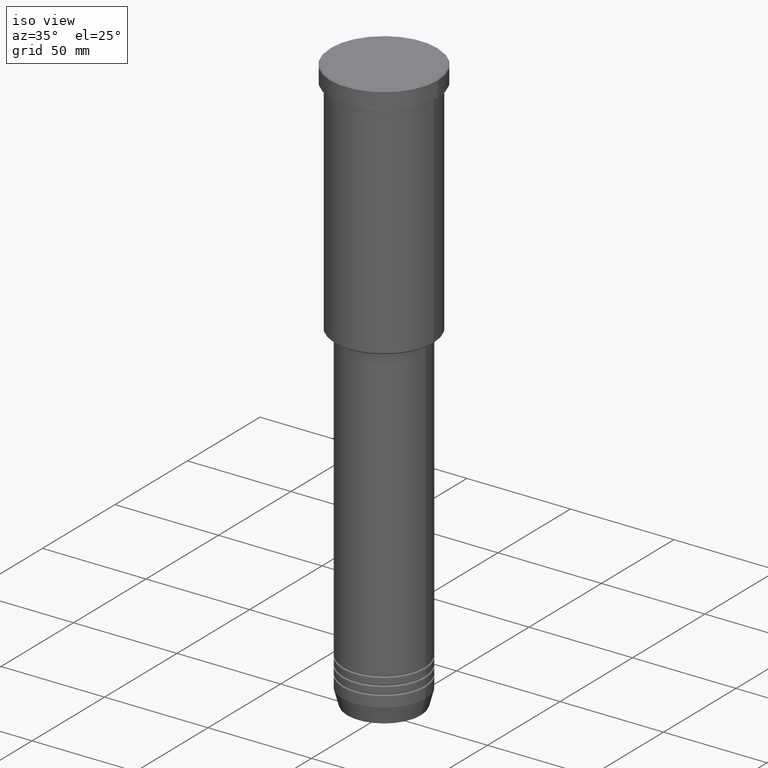
[diagram: clean part render]
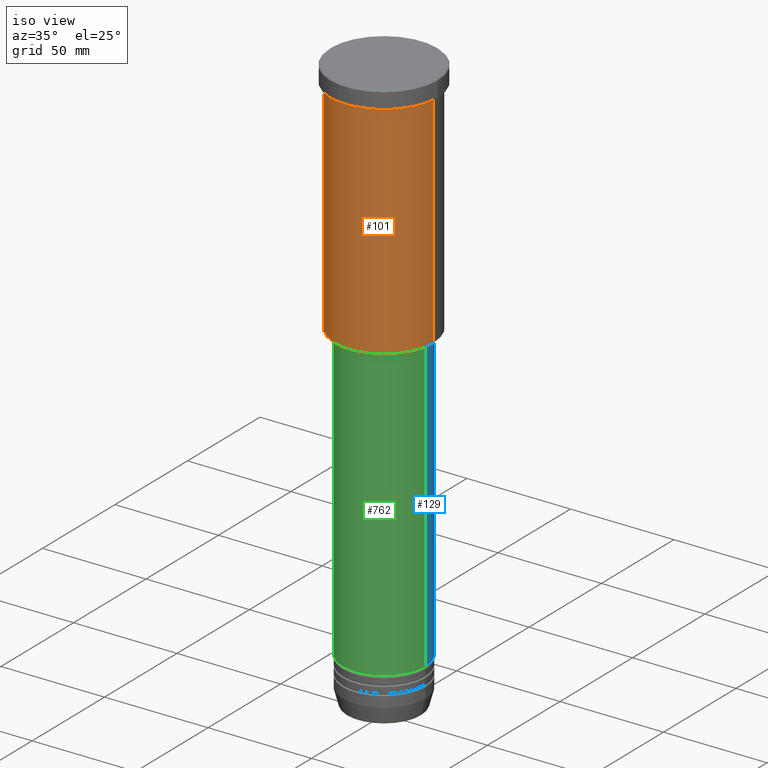
[diagram: same view with three faces highlighted in distinct colors, each labeled with its STEP entity id]
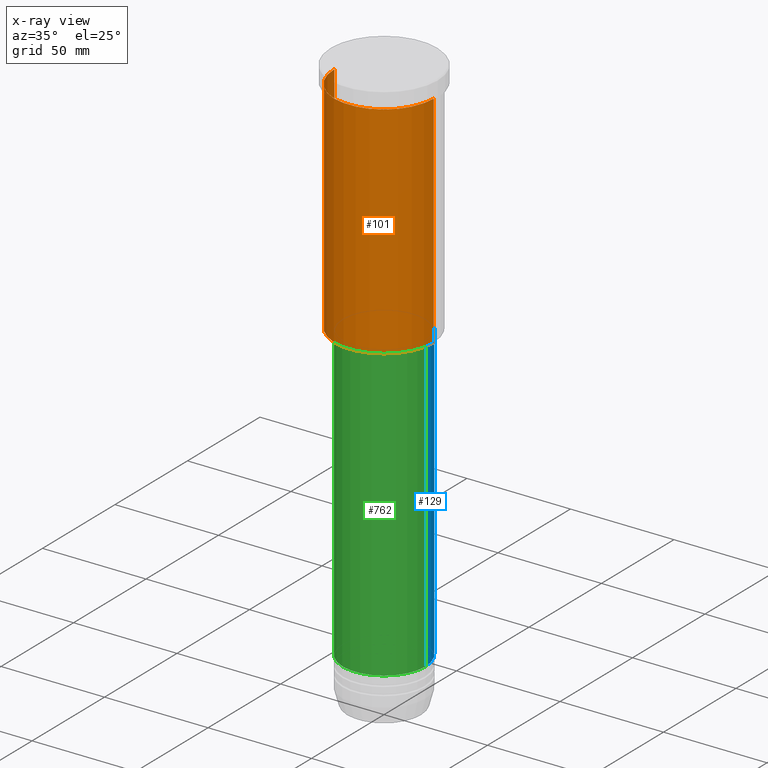
[diagram: x-ray of the same camera — body ghosted, the three highlighted faces saturated]
A machine part, iso view with three faces highlighted in distinct colors.
The next image is the same camera in x-ray (body ghosted, the three faces saturated) — at least one of them is partly hidden behind the body in this view.
Their STEP definitions:

[orange] entity #101 — the highlighted cylindrical surface (partial cylindrical patch) has radius 24 mm, axis along (-0, -0, 1).
#75 = ORIENTED_EDGE ( 'NONE', *, *, #736, .F. ) ;
#98 = AXIS2_PLACEMENT_3D ( 'NONE', #1162, #980, #878 ) ;
#101 = ADVANCED_FACE ( 'NONE', ( #1077 ), #901, .T. ) ;
#118 = DIRECTION ( 'NONE',  ( -1.000000000000000000, 0.000000000000000000, 0.000000000000000000 ) ) ;
#216 = ORIENTED_EDGE ( 'NONE', *, *, #1041, .F. ) ;
#238 = AXIS2_PLACEMENT_3D ( 'NONE', #545, #248, #540 ) ;
#248 = DIRECTION ( 'NONE',  ( -0.000000000000000000, -0.000000000000000000, 1.000000000000000000 ) ) ;
#282 = EDGE_CURVE ( 'NONE', #1064, #286, #489, .T. ) ;
#286 = VERTEX_POINT ( 'NONE', #752 ) ;
#312 = AXIS2_PLACEMENT_3D ( 'NONE', #500, #1125, #118 ) ;
#335 = EDGE_CURVE ( 'NONE', #286, #856, #387, .T. ) ;
#354 = DIRECTION ( 'NONE',  ( -0.000000000000000000, -0.000000000000000000, 1.000000000000000000 ) ) ;
#366 = CARTESIAN_POINT ( 'NONE',  ( -24.00000000000000000, 2.939152317953647894E-15, 0.000000000000000000 ) ) ;
#374 = VECTOR ( 'NONE', #1136, 1000.000000000000000 ) ;
#387 = LINE ( 'NONE', #764, #374 ) ;
#424 = CARTESIAN_POINT ( 'NONE',  ( -24.00000000000000000, 2.939152317953647894E-15, -115.4999999999999289 ) ) ;
#489 = CIRCLE ( 'NONE', #312, 24.00000000000000000 ) ;
#497 = CIRCLE ( 'NONE', #98, 24.00000000000000000 ) ;
#500 = CARTESIAN_POINT ( 'NONE',  ( 0.000000000000000000, 0.000000000000000000, -115.4999999999999289 ) ) ;
#540 = DIRECTION ( 'NONE',  ( 1.000000000000000000, 0.000000000000000000, 0.000000000000000000 ) ) ;
#545 = CARTESIAN_POINT ( 'NONE',  ( 0.000000000000000000, 0.000000000000000000, 0.000000000000000000 ) ) ;
#566 = CARTESIAN_POINT ( 'NONE',  ( -24.00000000000000000, 2.939152317953647894E-15, -8.999999999999994671 ) ) ;
#570 = ORIENTED_EDGE ( 'NONE', *, *, #335, .T. ) ;
#627 = VECTOR ( 'NONE', #354, 1000.000000000000000 ) ;
#635 = CARTESIAN_POINT ( 'NONE',  ( 24.00000000000000000, 0.000000000000000000, -8.999999999999994671 ) ) ;
#736 = EDGE_CURVE ( 'NONE', #1064, #905, #824, .T. ) ;
#752 = CARTESIAN_POINT ( 'NONE',  ( 24.00000000000000000, 0.000000000000000000, -115.4999999999999289 ) ) ;
#764 = CARTESIAN_POINT ( 'NONE',  ( 24.00000000000000000, 0.000000000000000000, 0.000000000000000000 ) ) ;
#770 = EDGE_LOOP ( 'NONE', ( #75, #838, #570, #216 ) ) ;
#824 = LINE ( 'NONE', #366, #627 ) ;
#838 = ORIENTED_EDGE ( 'NONE', *, *, #282, .T. ) ;
#856 = VERTEX_POINT ( 'NONE', #635 ) ;
#878 = DIRECTION ( 'NONE',  ( 1.000000000000000000, 0.000000000000000000, 0.000000000000000000 ) ) ;
#901 = CYLINDRICAL_SURFACE ( 'NONE', #238, 24.00000000000000000 ) ;
#905 = VERTEX_POINT ( 'NONE', #566 ) ;
#980 = DIRECTION ( 'NONE',  ( -0.000000000000000000, -0.000000000000000000, 1.000000000000000000 ) ) ;
#1041 = EDGE_CURVE ( 'NONE', #905, #856, #497, .T. ) ;
#1064 = VERTEX_POINT ( 'NONE', #424 ) ;
#1077 = FACE_OUTER_BOUND ( 'NONE', #770, .T. ) ;
#1125 = DIRECTION ( 'NONE',  ( -0.000000000000000000, -0.000000000000000000, 1.000000000000000000 ) ) ;
#1136 = DIRECTION ( 'NONE',  ( -0.000000000000000000, -0.000000000000000000, 1.000000000000000000 ) ) ;
#1162 = CARTESIAN_POINT ( 'NONE',  ( 0.000000000000000000, 0.000000000000000000, -8.999999999999994671 ) ) ;

[blue] entity #129 — the highlighted cylindrical surface (partial cylindrical patch) has radius 20 mm, axis along (-0, -0, 1).
#5 = LINE ( 'NONE', #262, #724 ) ;
#45 = EDGE_CURVE ( 'NONE', #910, #132, #1152, .T. ) ;
#77 = DIRECTION ( 'NONE',  ( -0.000000000000000000, -0.000000000000000000, 1.000000000000000000 ) ) ;
#94 = VERTEX_POINT ( 'NONE', #818 ) ;
#99 = VERTEX_POINT ( 'NONE', #1182 ) ;
#112 = CIRCLE ( 'NONE', #552, 20.00000000000000355 ) ;
#129 = ADVANCED_FACE ( 'NONE', ( #630 ), #348, .T. ) ;
#132 = VERTEX_POINT ( 'NONE', #1165 ) ;
#220 = AXIS2_PLACEMENT_3D ( 'NONE', #433, #728, #439 ) ;
#227 = DIRECTION ( 'NONE',  ( 1.000000000000000000, 0.000000000000000000, 0.000000000000000000 ) ) ;
#232 = EDGE_CURVE ( 'NONE', #910, #99, #112, .T. ) ;
#237 = CARTESIAN_POINT ( 'NONE',  ( 20.00000000000000355, 0.000000000000000000, 0.000000000000000000 ) ) ;
#262 = CARTESIAN_POINT ( 'NONE',  ( -20.00000000000000355, 2.449293598294706907E-15, 0.000000000000000000 ) ) ;
#348 = CYLINDRICAL_SURFACE ( 'NONE', #220, 20.00000000000000355 ) ;
#383 = ORIENTED_EDGE ( 'NONE', *, *, #232, .T. ) ;
#391 = VECTOR ( 'NONE', #405, 1000.000000000000000 ) ;
#405 = DIRECTION ( 'NONE',  ( -0.000000000000000000, -0.000000000000000000, 1.000000000000000000 ) ) ;
#406 = CIRCLE ( 'NONE', #1084, 20.00000000000000355 ) ;
#433 = CARTESIAN_POINT ( 'NONE',  ( 0.000000000000000000, 0.000000000000000000, 0.000000000000000000 ) ) ;
#439 = DIRECTION ( 'NONE',  ( 1.000000000000000000, 0.000000000000000000, 0.000000000000000000 ) ) ;
#502 = ORIENTED_EDGE ( 'NONE', *, *, #45, .F. ) ;
#552 = AXIS2_PLACEMENT_3D ( 'NONE', #1059, #851, #227 ) ;
#575 = EDGE_CURVE ( 'NONE', #99, #94, #5, .T. ) ;
#623 = DIRECTION ( 'NONE',  ( 1.000000000000000000, 0.000000000000000000, 0.000000000000000000 ) ) ;
#630 = FACE_OUTER_BOUND ( 'NONE', #1086, .T. ) ;
#632 = ORIENTED_EDGE ( 'NONE', *, *, #814, .F. ) ;
#724 = VECTOR ( 'NONE', #745, 1000.000000000000000 ) ;
#728 = DIRECTION ( 'NONE',  ( -0.000000000000000000, -0.000000000000000000, 1.000000000000000000 ) ) ;
#745 = DIRECTION ( 'NONE',  ( -0.000000000000000000, -0.000000000000000000, 1.000000000000000000 ) ) ;
#814 = EDGE_CURVE ( 'NONE', #132, #94, #406, .T. ) ;
#818 = CARTESIAN_POINT ( 'NONE',  ( -20.00000000000000355, 2.449293598294706907E-15, -117.0000000000000000 ) ) ;
#851 = DIRECTION ( 'NONE',  ( -0.000000000000000000, -0.000000000000000000, 1.000000000000000000 ) ) ;
#910 = VERTEX_POINT ( 'NONE', #1138 ) ;
#1012 = CARTESIAN_POINT ( 'NONE',  ( 0.000000000000000000, 0.000000000000000000, -117.0000000000000000 ) ) ;
#1059 = CARTESIAN_POINT ( 'NONE',  ( 0.000000000000000000, 0.000000000000000000, -258.0000000000000000 ) ) ;
#1084 = AXIS2_PLACEMENT_3D ( 'NONE', #1012, #77, #623 ) ;
#1086 = EDGE_LOOP ( 'NONE', ( #383, #1110, #632, #502 ) ) ;
#1110 = ORIENTED_EDGE ( 'NONE', *, *, #575, .T. ) ;
#1138 = CARTESIAN_POINT ( 'NONE',  ( 20.00000000000000355, 0.000000000000000000, -258.0000000000000000 ) ) ;
#1152 = LINE ( 'NONE', #237, #391 ) ;
#1165 = CARTESIAN_POINT ( 'NONE',  ( 20.00000000000000355, 0.000000000000000000, -117.0000000000000000 ) ) ;
#1182 = CARTESIAN_POINT ( 'NONE',  ( -20.00000000000000355, 2.449293598294706907E-15, -258.0000000000000000 ) ) ;

[green] entity #762 — the highlighted cylindrical surface (partial cylindrical patch) has radius 20 mm, axis along (-0, -0, 1).
#5 = LINE ( 'NONE', #262, #724 ) ;
#45 = EDGE_CURVE ( 'NONE', #910, #132, #1152, .T. ) ;
#63 = EDGE_CURVE ( 'NONE', #99, #910, #1069, .T. ) ;
#94 = VERTEX_POINT ( 'NONE', #818 ) ;
#99 = VERTEX_POINT ( 'NONE', #1182 ) ;
#107 = CARTESIAN_POINT ( 'NONE',  ( 0.000000000000000000, 0.000000000000000000, -117.0000000000000000 ) ) ;
#132 = VERTEX_POINT ( 'NONE', #1165 ) ;
#152 = DIRECTION ( 'NONE',  ( -0.000000000000000000, -0.000000000000000000, 1.000000000000000000 ) ) ;
#237 = CARTESIAN_POINT ( 'NONE',  ( 20.00000000000000355, 0.000000000000000000, 0.000000000000000000 ) ) ;
#256 = ORIENTED_EDGE ( 'NONE', *, *, #63, .T. ) ;
#262 = CARTESIAN_POINT ( 'NONE',  ( -20.00000000000000355, 2.449293598294706907E-15, 0.000000000000000000 ) ) ;
#350 = ORIENTED_EDGE ( 'NONE', *, *, #45, .T. ) ;
#391 = VECTOR ( 'NONE', #405, 1000.000000000000000 ) ;
#405 = DIRECTION ( 'NONE',  ( -0.000000000000000000, -0.000000000000000000, 1.000000000000000000 ) ) ;
#422 = CARTESIAN_POINT ( 'NONE',  ( 0.000000000000000000, 0.000000000000000000, -258.0000000000000000 ) ) ;
#446 = FACE_OUTER_BOUND ( 'NONE', #887, .T. ) ;
#482 = DIRECTION ( 'NONE',  ( 1.000000000000000000, 0.000000000000000000, 0.000000000000000000 ) ) ;
#498 = ORIENTED_EDGE ( 'NONE', *, *, #575, .F. ) ;
#575 = EDGE_CURVE ( 'NONE', #99, #94, #5, .T. ) ;
#700 = DIRECTION ( 'NONE',  ( 1.000000000000000000, 0.000000000000000000, 0.000000000000000000 ) ) ;
#710 = DIRECTION ( 'NONE',  ( 1.000000000000000000, 0.000000000000000000, 0.000000000000000000 ) ) ;
#722 = ORIENTED_EDGE ( 'NONE', *, *, #882, .F. ) ;
#724 = VECTOR ( 'NONE', #745, 1000.000000000000000 ) ;
#745 = DIRECTION ( 'NONE',  ( -0.000000000000000000, -0.000000000000000000, 1.000000000000000000 ) ) ;
#762 = ADVANCED_FACE ( 'NONE', ( #446 ), #1172, .T. ) ;
#813 = AXIS2_PLACEMENT_3D ( 'NONE', #907, #899, #710 ) ;
#818 = CARTESIAN_POINT ( 'NONE',  ( -20.00000000000000355, 2.449293598294706907E-15, -117.0000000000000000 ) ) ;
#828 = CIRCLE ( 'NONE', #1004, 20.00000000000000355 ) ;
#882 = EDGE_CURVE ( 'NONE', #94, #132, #828, .T. ) ;
#887 = EDGE_LOOP ( 'NONE', ( #498, #256, #350, #722 ) ) ;
#899 = DIRECTION ( 'NONE',  ( -0.000000000000000000, -0.000000000000000000, 1.000000000000000000 ) ) ;
#907 = CARTESIAN_POINT ( 'NONE',  ( 0.000000000000000000, 0.000000000000000000, 0.000000000000000000 ) ) ;
#910 = VERTEX_POINT ( 'NONE', #1138 ) ;
#1004 = AXIS2_PLACEMENT_3D ( 'NONE', #107, #1123, #482 ) ;
#1069 = CIRCLE ( 'NONE', #1181, 20.00000000000000355 ) ;
#1123 = DIRECTION ( 'NONE',  ( -0.000000000000000000, -0.000000000000000000, 1.000000000000000000 ) ) ;
#1138 = CARTESIAN_POINT ( 'NONE',  ( 20.00000000000000355, 0.000000000000000000, -258.0000000000000000 ) ) ;
#1152 = LINE ( 'NONE', #237, #391 ) ;
#1165 = CARTESIAN_POINT ( 'NONE',  ( 20.00000000000000355, 0.000000000000000000, -117.0000000000000000 ) ) ;
#1172 = CYLINDRICAL_SURFACE ( 'NONE', #813, 20.00000000000000355 ) ;
#1181 = AXIS2_PLACEMENT_3D ( 'NONE', #422, #152, #700 ) ;
#1182 = CARTESIAN_POINT ( 'NONE',  ( -20.00000000000000355, 2.449293598294706907E-15, -258.0000000000000000 ) ) ;